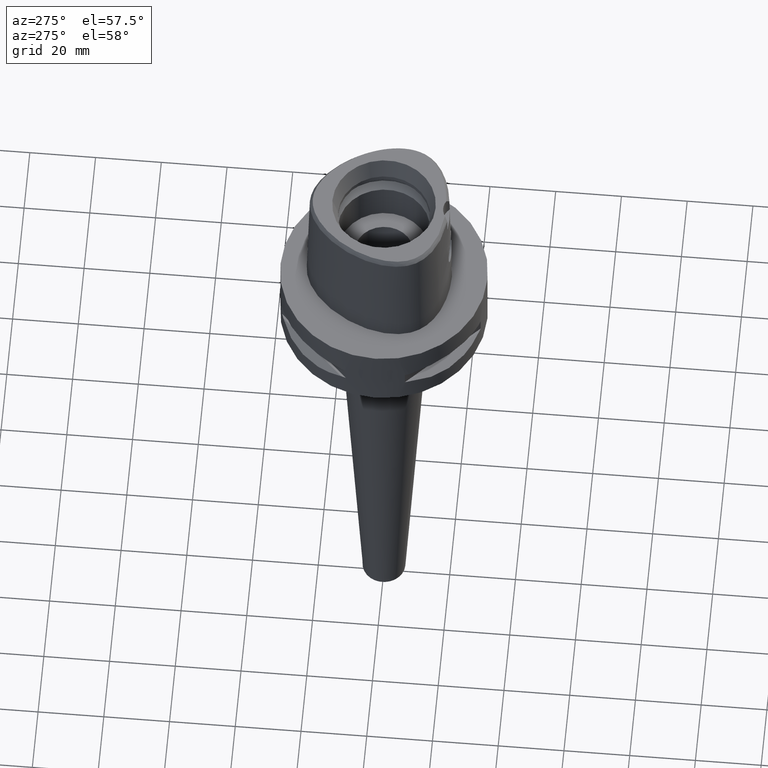
[diagram: clean part render]
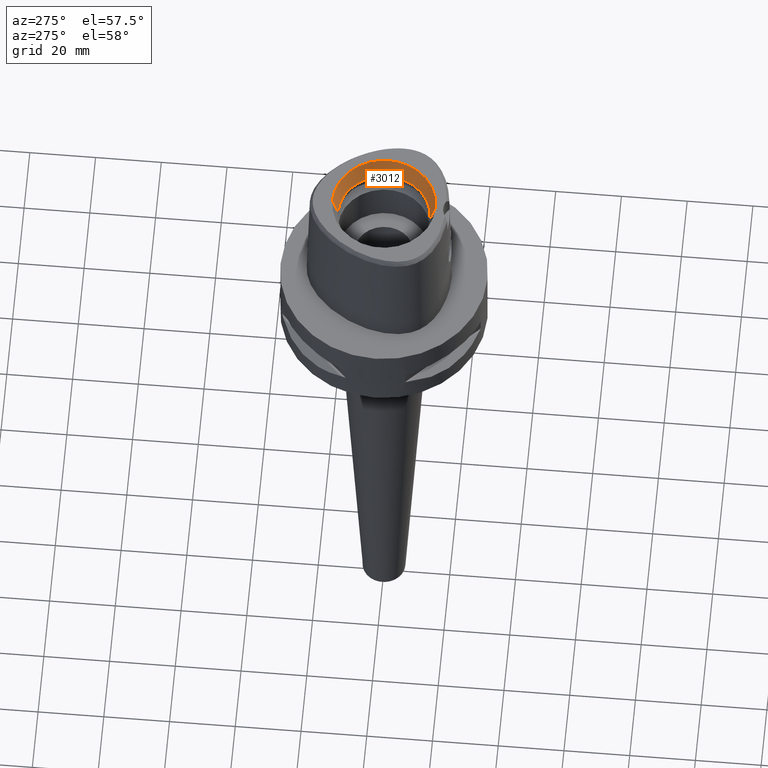
[diagram: same view with one face highlighted and labeled with its STEP entity id]
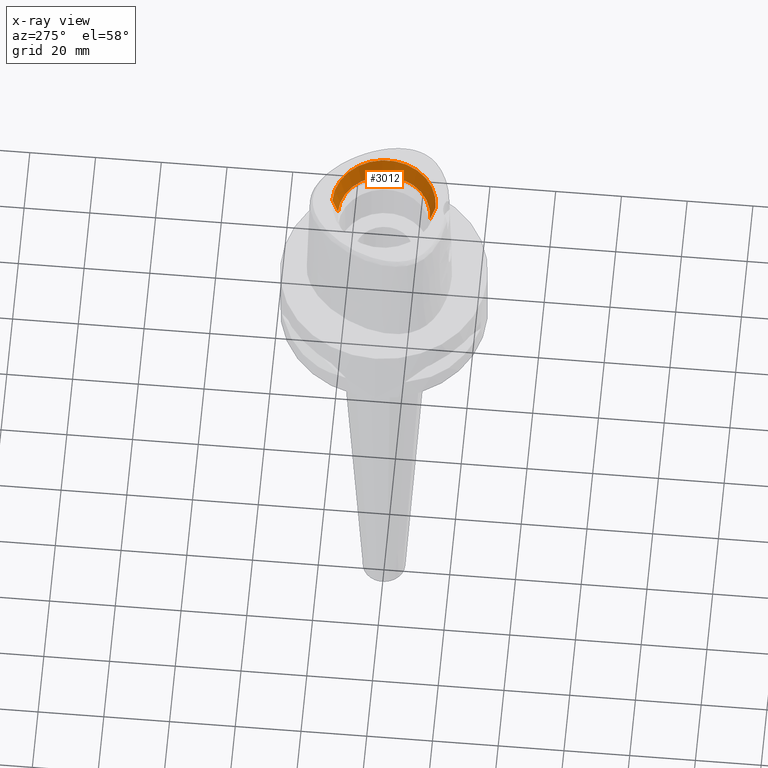
[diagram: x-ray of the same camera — body ghosted, the highlighted face saturated]
A machine part, auxiliary view. The second image highlights one B-rep face of the part: STEP entity #3012.
The next image is the same camera in x-ray: the body ghosted, the highlighted face saturated — about 0% of this face is hidden behind the body in this view.
In plain terms, the highlighted conical surface has half-angle 15 deg.
Its self-contained STEP definition (entity closure, byte-faithful):
#120=CARTESIAN_POINT('',(0.E0,0.E0,3.8E1));
#121=DIRECTION('',(0.E0,0.E0,1.E0));
#122=DIRECTION('',(0.E0,-1.E0,0.E0));
#123=AXIS2_PLACEMENT_3D('',#120,#121,#122);
#1110=DIRECTION('',(0.E0,-2.588190451026E-1,9.659258262891E-1));
#1111=VECTOR('',#1110,6.625767554625E0);
#1112=CARTESIAN_POINT('',(0.E0,-1.4E1,3.16E1));
#1113=LINE('',#1112,#1111);
#1117=CARTESIAN_POINT('',(0.E0,0.E0,3.16E1));
#1118=DIRECTION('',(0.E0,0.E0,1.E0));
#1119=DIRECTION('',(0.E0,-1.E0,0.E0));
#1120=AXIS2_PLACEMENT_3D('',#1117,#1118,#1119);
#1125=DIRECTION('',(0.E0,2.588190451026E-1,9.659258262891E-1));
#1126=VECTOR('',#1125,6.625767554625E0);
#1127=CARTESIAN_POINT('',(0.E0,1.4E1,3.16E1));
#1128=LINE('',#1127,#1126);
#1439=CARTESIAN_POINT('',(0.E0,1.571487483156E1,3.8E1));
#1440=CARTESIAN_POINT('',(0.E0,-1.571487483156E1,3.8E1));
#1441=VERTEX_POINT('',#1439);
#1442=VERTEX_POINT('',#1440);
#1591=CARTESIAN_POINT('',(0.E0,-1.4E1,3.16E1));
#1592=VERTEX_POINT('',#1591);
#1593=CARTESIAN_POINT('',(0.E0,1.4E1,3.16E1));
#1594=VERTEX_POINT('',#1593);
#3001=CARTESIAN_POINT('',(0.E0,0.E0,3.48E1));
#3002=DIRECTION('',(0.E0,0.E0,1.E0));
#3003=DIRECTION('',(0.E0,1.E0,0.E0));
#3004=AXIS2_PLACEMENT_3D('',#3001,#3002,#3003);
#3005=CONICAL_SURFACE('',#3004,1.485743741578E1,1.5E1);
#3006=ORIENTED_EDGE('',*,*,#1612,.F.);
#3007=ORIENTED_EDGE('',*,*,#2996,.F.);
#3008=ORIENTED_EDGE('',*,*,#2969,.T.);
#3009=ORIENTED_EDGE('',*,*,#2993,.T.);
#3010=EDGE_LOOP('',(#3006,#3007,#3008,#3009));
#3011=FACE_OUTER_BOUND('',#3010,.F.);
#124=CIRCLE('',#123,1.571487483156E1);
#1121=CIRCLE('',#1120,1.4E1);
#1612=EDGE_CURVE('',#1442,#1441,#124,.T.);
#2969=EDGE_CURVE('',#1592,#1594,#1121,.T.);
#2993=EDGE_CURVE('',#1594,#1441,#1128,.T.);
#2996=EDGE_CURVE('',#1592,#1442,#1113,.T.);
#3012=ADVANCED_FACE('',(#3011),#3005,.F.);